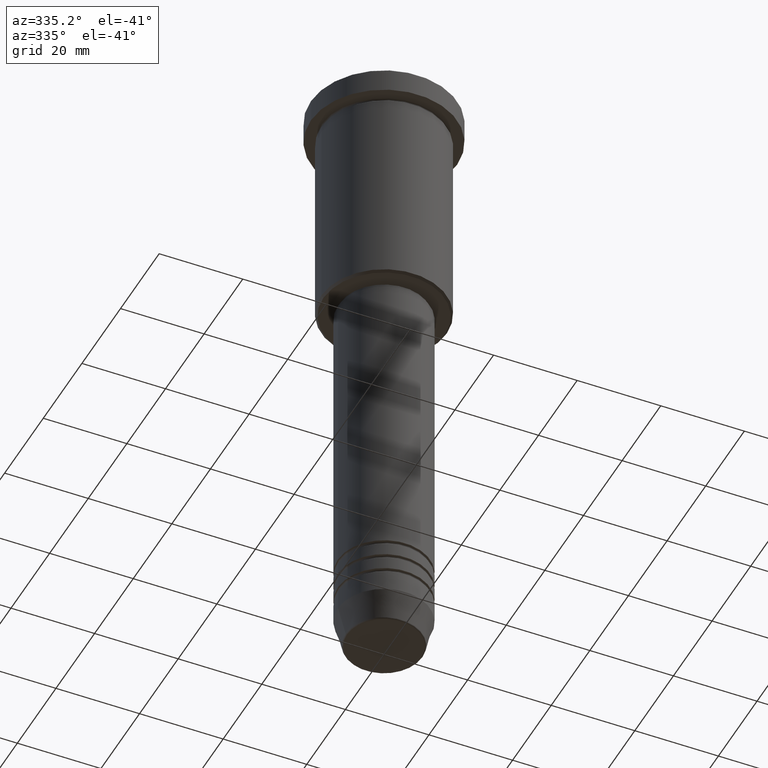
[diagram: clean part render]
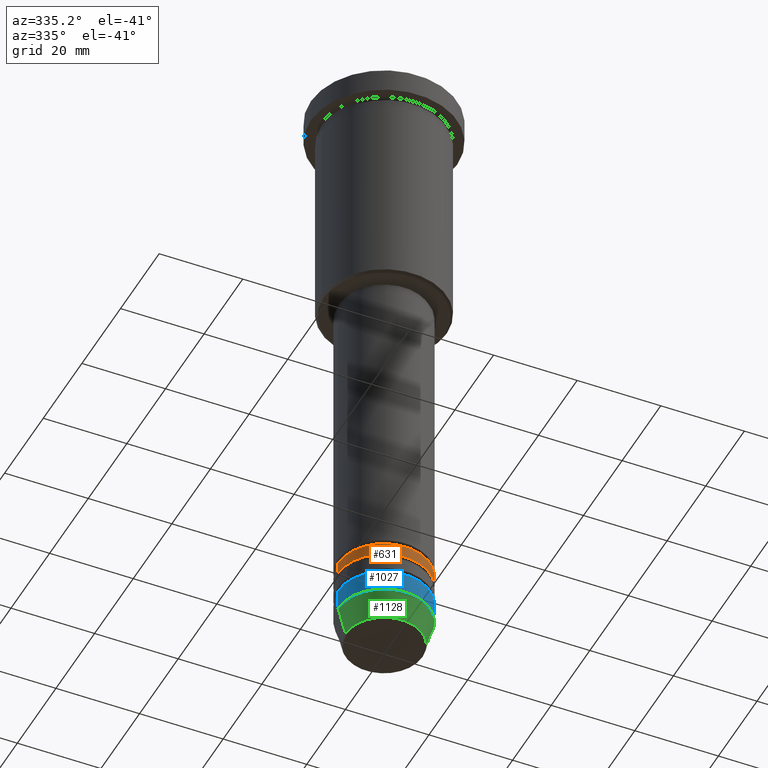
[diagram: same view with three faces highlighted in distinct colors, each labeled with its STEP entity id]
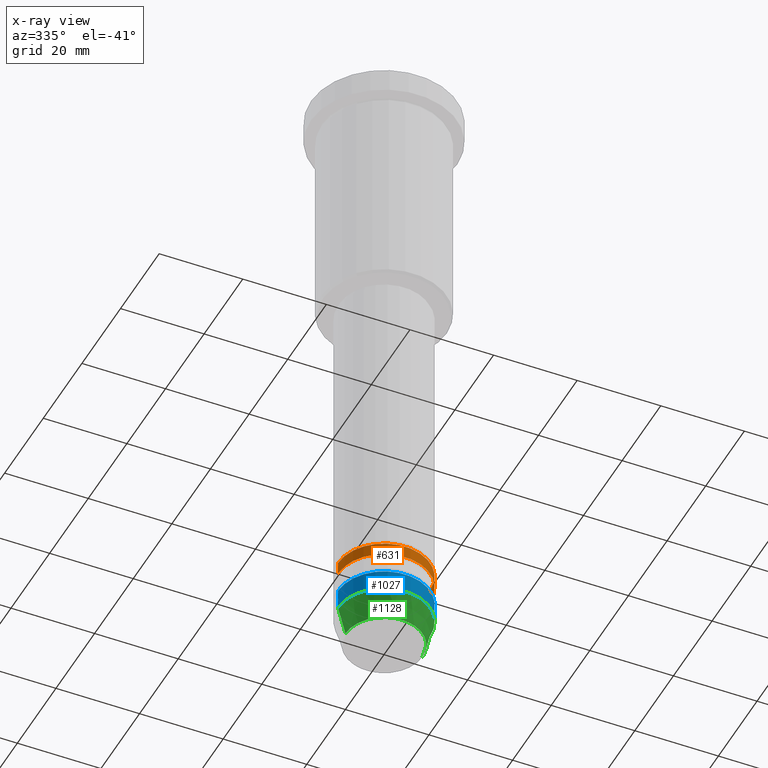
[diagram: x-ray of the same camera — body ghosted, the three highlighted faces saturated]
A machine part, auxiliary view with three faces highlighted in distinct colors.
The next image is the same camera in x-ray (body ghosted, the three faces saturated) — at least one of them is partly hidden behind the body in this view.
Their STEP definitions:

[orange] entity #631 — the highlighted cylindrical surface (partial cylindrical patch) has radius 11 mm, axis along (-0, -0, 1).
#27 = EDGE_CURVE ( 'NONE', #864, #425, #844, .T. ) ;
#91 = DIRECTION ( 'NONE',  ( -0.000000000000000000, -0.000000000000000000, 1.000000000000000000 ) ) ;
#161 = DIRECTION ( 'NONE',  ( 1.000000000000000000, 0.000000000000000000, 0.000000000000000000 ) ) ;
#171 = ORIENTED_EDGE ( 'NONE', *, *, #216, .T. ) ;
#174 = CARTESIAN_POINT ( 'NONE',  ( 0.000000000000000000, 0.000000000000000000, -133.9999999999999147 ) ) ;
#179 = VERTEX_POINT ( 'NONE', #397 ) ;
#216 = EDGE_CURVE ( 'NONE', #179, #608, #1026, .T. ) ;
#248 = EDGE_LOOP ( 'NONE', ( #324, #963, #171, #609 ) ) ;
#274 = VECTOR ( 'NONE', #932, 1000.000000000000000 ) ;
#324 = ORIENTED_EDGE ( 'NONE', *, *, #27, .F. ) ;
#397 = CARTESIAN_POINT ( 'NONE',  ( 11.00000000000000355, 0.000000000000000000, -133.9999999999999147 ) ) ;
#425 = VERTEX_POINT ( 'NONE', #664 ) ;
#428 = FACE_OUTER_BOUND ( 'NONE', #248, .T. ) ;
#431 = CARTESIAN_POINT ( 'NONE',  ( 0.000000000000000000, 0.000000000000000000, -130.9999999999998863 ) ) ;
#485 = CARTESIAN_POINT ( 'NONE',  ( -11.00000000000000178, 1.347111479062088602E-15, 0.000000000000000000 ) ) ;
#496 = AXIS2_PLACEMENT_3D ( 'NONE', #431, #780, #1139 ) ;
#531 = VECTOR ( 'NONE', #91, 1000.000000000000000 ) ;
#543 = CARTESIAN_POINT ( 'NONE',  ( -11.00000000000000355, 1.347111479062088996E-15, -133.9999999999999147 ) ) ;
#608 = VERTEX_POINT ( 'NONE', #878 ) ;
#609 = ORIENTED_EDGE ( 'NONE', *, *, #838, .F. ) ;
#631 = ADVANCED_FACE ( 'NONE', ( #428 ), #1135, .T. ) ;
#650 = AXIS2_PLACEMENT_3D ( 'NONE', #695, #1049, #962 ) ;
#651 = CIRCLE ( 'NONE', #496, 11.00000000000000000 ) ;
#664 = CARTESIAN_POINT ( 'NONE',  ( -11.00000000000000000, 1.347111479062088602E-15, -130.9999999999998863 ) ) ;
#695 = CARTESIAN_POINT ( 'NONE',  ( 0.000000000000000000, 0.000000000000000000, 0.000000000000000000 ) ) ;
#699 = CIRCLE ( 'NONE', #790, 11.00000000000000355 ) ;
#780 = DIRECTION ( 'NONE',  ( -0.000000000000000000, -0.000000000000000000, 1.000000000000000000 ) ) ;
#790 = AXIS2_PLACEMENT_3D ( 'NONE', #174, #1061, #161 ) ;
#838 = EDGE_CURVE ( 'NONE', #425, #608, #651, .T. ) ;
#844 = LINE ( 'NONE', #485, #274 ) ;
#864 = VERTEX_POINT ( 'NONE', #543 ) ;
#878 = CARTESIAN_POINT ( 'NONE',  ( 11.00000000000000000, 0.000000000000000000, -130.9999999999998863 ) ) ;
#913 = CARTESIAN_POINT ( 'NONE',  ( 11.00000000000000178, 0.000000000000000000, 0.000000000000000000 ) ) ;
#932 = DIRECTION ( 'NONE',  ( -0.000000000000000000, -0.000000000000000000, 1.000000000000000000 ) ) ;
#962 = DIRECTION ( 'NONE',  ( 1.000000000000000000, 0.000000000000000000, 0.000000000000000000 ) ) ;
#963 = ORIENTED_EDGE ( 'NONE', *, *, #1110, .T. ) ;
#1026 = LINE ( 'NONE', #913, #531 ) ;
#1049 = DIRECTION ( 'NONE',  ( -0.000000000000000000, -0.000000000000000000, 1.000000000000000000 ) ) ;
#1061 = DIRECTION ( 'NONE',  ( -0.000000000000000000, -0.000000000000000000, 1.000000000000000000 ) ) ;
#1110 = EDGE_CURVE ( 'NONE', #864, #179, #699, .T. ) ;
#1135 = CYLINDRICAL_SURFACE ( 'NONE', #650, 11.00000000000000178 ) ;
#1139 = DIRECTION ( 'NONE',  ( 1.000000000000000000, 0.000000000000000000, 0.000000000000000000 ) ) ;

[blue] entity #1027 — the highlighted cylindrical surface (partial cylindrical patch) has radius 11 mm, axis along (-0, -0, 1).
#55 = VERTEX_POINT ( 'NONE', #292 ) ;
#81 = VECTOR ( 'NONE', #488, 1000.000000000000000 ) ;
#83 = ORIENTED_EDGE ( 'NONE', *, *, #475, .F. ) ;
#122 = CARTESIAN_POINT ( 'NONE',  ( -11.00000000000000000, 1.347111479062088405E-15, 0.000000000000000000 ) ) ;
#129 = CARTESIAN_POINT ( 'NONE',  ( 11.00000000000000000, 0.000000000000000000, 0.000000000000000000 ) ) ;
#134 = VERTEX_POINT ( 'NONE', #1009 ) ;
#137 = EDGE_CURVE ( 'NONE', #877, #1037, #1095, .T. ) ;
#173 = DIRECTION ( 'NONE',  ( 1.000000000000000000, 0.000000000000000000, 0.000000000000000000 ) ) ;
#200 = AXIS2_PLACEMENT_3D ( 'NONE', #1082, #896, #357 ) ;
#245 = CARTESIAN_POINT ( 'NONE',  ( 0.000000000000000000, 0.000000000000000000, -144.0000000000000284 ) ) ;
#268 = CARTESIAN_POINT ( 'NONE',  ( -11.00000000000000000, 1.347111479062088405E-15, -144.0000000000000284 ) ) ;
#292 = CARTESIAN_POINT ( 'NONE',  ( -11.00000000000000000, 1.347111479062088405E-15, -139.0000000000000000 ) ) ;
#328 = DIRECTION ( 'NONE',  ( -0.000000000000000000, -0.000000000000000000, 1.000000000000000000 ) ) ;
#357 = DIRECTION ( 'NONE',  ( 1.000000000000000000, 0.000000000000000000, 0.000000000000000000 ) ) ;
#475 = EDGE_CURVE ( 'NONE', #877, #55, #579, .T. ) ;
#483 = AXIS2_PLACEMENT_3D ( 'NONE', #590, #517, #505 ) ;
#488 = DIRECTION ( 'NONE',  ( -0.000000000000000000, -0.000000000000000000, 1.000000000000000000 ) ) ;
#500 = CYLINDRICAL_SURFACE ( 'NONE', #483, 11.00000000000000000 ) ;
#505 = DIRECTION ( 'NONE',  ( 1.000000000000000000, 0.000000000000000000, 0.000000000000000000 ) ) ;
#514 = ORIENTED_EDGE ( 'NONE', *, *, #563, .T. ) ;
#517 = DIRECTION ( 'NONE',  ( -0.000000000000000000, -0.000000000000000000, 1.000000000000000000 ) ) ;
#522 = EDGE_LOOP ( 'NONE', ( #83, #1177, #514, #1149 ) ) ;
#563 = EDGE_CURVE ( 'NONE', #1037, #134, #615, .T. ) ;
#579 = LINE ( 'NONE', #122, #81 ) ;
#590 = CARTESIAN_POINT ( 'NONE',  ( 0.000000000000000000, 0.000000000000000000, 0.000000000000000000 ) ) ;
#610 = FACE_OUTER_BOUND ( 'NONE', #522, .T. ) ;
#615 = LINE ( 'NONE', #129, #747 ) ;
#675 = EDGE_CURVE ( 'NONE', #55, #134, #998, .T. ) ;
#734 = AXIS2_PLACEMENT_3D ( 'NONE', #245, #803, #173 ) ;
#747 = VECTOR ( 'NONE', #328, 1000.000000000000000 ) ;
#803 = DIRECTION ( 'NONE',  ( -0.000000000000000000, -0.000000000000000000, 1.000000000000000000 ) ) ;
#877 = VERTEX_POINT ( 'NONE', #268 ) ;
#896 = DIRECTION ( 'NONE',  ( -0.000000000000000000, -0.000000000000000000, 1.000000000000000000 ) ) ;
#998 = CIRCLE ( 'NONE', #200, 11.00000000000000000 ) ;
#1009 = CARTESIAN_POINT ( 'NONE',  ( 11.00000000000000000, 0.000000000000000000, -139.0000000000000000 ) ) ;
#1027 = ADVANCED_FACE ( 'NONE', ( #610 ), #500, .T. ) ;
#1037 = VERTEX_POINT ( 'NONE', #1038 ) ;
#1038 = CARTESIAN_POINT ( 'NONE',  ( 11.00000000000000000, 0.000000000000000000, -144.0000000000000284 ) ) ;
#1082 = CARTESIAN_POINT ( 'NONE',  ( 0.000000000000000000, 0.000000000000000000, -139.0000000000000000 ) ) ;
#1095 = CIRCLE ( 'NONE', #734, 11.00000000000000000 ) ;
#1149 = ORIENTED_EDGE ( 'NONE', *, *, #675, .F. ) ;
#1177 = ORIENTED_EDGE ( 'NONE', *, *, #137, .T. ) ;

[green] entity #1128 — the highlighted conical surface has half-angle 15 deg.
#4 = DIRECTION ( 'NONE',  ( -0.000000000000000000, -0.000000000000000000, 1.000000000000000000 ) ) ;
#26 = CARTESIAN_POINT ( 'NONE',  ( -9.223655072137189492, 1.238341722557647202E-15, -150.6294095225512706 ) ) ;
#28 = CARTESIAN_POINT ( 'NONE',  ( -11.00000000000000000, 1.347111479062088405E-15, -144.0000000000000284 ) ) ;
#88 = EDGE_CURVE ( 'NONE', #449, #857, #345, .T. ) ;
#90 = DIRECTION ( 'NONE',  ( -0.000000000000000000, -0.000000000000000000, 1.000000000000000000 ) ) ;
#137 = EDGE_CURVE ( 'NONE', #877, #1037, #1095, .T. ) ;
#173 = DIRECTION ( 'NONE',  ( 1.000000000000000000, 0.000000000000000000, 0.000000000000000000 ) ) ;
#206 = CARTESIAN_POINT ( 'NONE',  ( 0.000000000000000000, 0.000000000000000000, -150.6294095225512706 ) ) ;
#245 = CARTESIAN_POINT ( 'NONE',  ( 0.000000000000000000, 0.000000000000000000, -144.0000000000000284 ) ) ;
#256 = EDGE_LOOP ( 'NONE', ( #805, #358, #1044, #594 ) ) ;
#268 = CARTESIAN_POINT ( 'NONE',  ( -11.00000000000000000, 1.347111479062088405E-15, -144.0000000000000284 ) ) ;
#280 = AXIS2_PLACEMENT_3D ( 'NONE', #206, #4, #1107 ) ;
#283 = EDGE_CURVE ( 'NONE', #449, #877, #316, .T. ) ;
#316 = LINE ( 'NONE', #28, #681 ) ;
#345 = CIRCLE ( 'NONE', #280, 9.223655072137189492 ) ;
#347 = CONICAL_SURFACE ( 'NONE', #911, 11.00000000000000000, 0.2617993877991500740 ) ;
#353 = DIRECTION ( 'NONE',  ( 1.000000000000000000, 0.000000000000000000, 0.000000000000000000 ) ) ;
#358 = ORIENTED_EDGE ( 'NONE', *, *, #88, .T. ) ;
#410 = DIRECTION ( 'NONE',  ( -0.2588190451025213501, 3.169619151431772337E-17, 0.9659258262890680902 ) ) ;
#449 = VERTEX_POINT ( 'NONE', #26 ) ;
#528 = FACE_OUTER_BOUND ( 'NONE', #256, .T. ) ;
#594 = ORIENTED_EDGE ( 'NONE', *, *, #137, .F. ) ;
#595 = CARTESIAN_POINT ( 'NONE',  ( 11.00000000000000000, 0.000000000000000000, -144.0000000000000284 ) ) ;
#655 = CARTESIAN_POINT ( 'NONE',  ( 9.223655072137189492, 0.000000000000000000, -150.6294095225512706 ) ) ;
#681 = VECTOR ( 'NONE', #410, 1000.000000000000000 ) ;
#734 = AXIS2_PLACEMENT_3D ( 'NONE', #245, #803, #173 ) ;
#754 = EDGE_CURVE ( 'NONE', #857, #1037, #1134, .T. ) ;
#803 = DIRECTION ( 'NONE',  ( -0.000000000000000000, -0.000000000000000000, 1.000000000000000000 ) ) ;
#805 = ORIENTED_EDGE ( 'NONE', *, *, #283, .F. ) ;
#857 = VERTEX_POINT ( 'NONE', #655 ) ;
#877 = VERTEX_POINT ( 'NONE', #268 ) ;
#911 = AXIS2_PLACEMENT_3D ( 'NONE', #1066, #90, #353 ) ;
#965 = DIRECTION ( 'NONE',  ( 0.2588190451025213501, 0.000000000000000000, 0.9659258262890680902 ) ) ;
#1037 = VERTEX_POINT ( 'NONE', #1038 ) ;
#1038 = CARTESIAN_POINT ( 'NONE',  ( 11.00000000000000000, 0.000000000000000000, -144.0000000000000284 ) ) ;
#1044 = ORIENTED_EDGE ( 'NONE', *, *, #754, .T. ) ;
#1066 = CARTESIAN_POINT ( 'NONE',  ( 0.000000000000000000, 0.000000000000000000, -144.0000000000000284 ) ) ;
#1095 = CIRCLE ( 'NONE', #734, 11.00000000000000000 ) ;
#1107 = DIRECTION ( 'NONE',  ( 1.000000000000000000, 0.000000000000000000, 0.000000000000000000 ) ) ;
#1108 = VECTOR ( 'NONE', #965, 1000.000000000000000 ) ;
#1128 = ADVANCED_FACE ( 'NONE', ( #528 ), #347, .T. ) ;
#1134 = LINE ( 'NONE', #595, #1108 ) ;